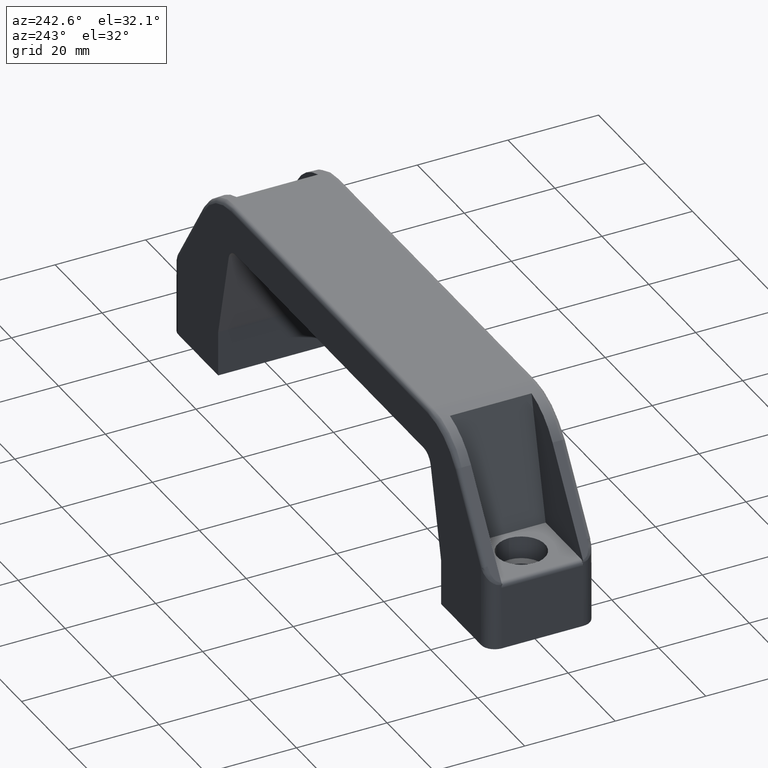
[diagram: clean part render]
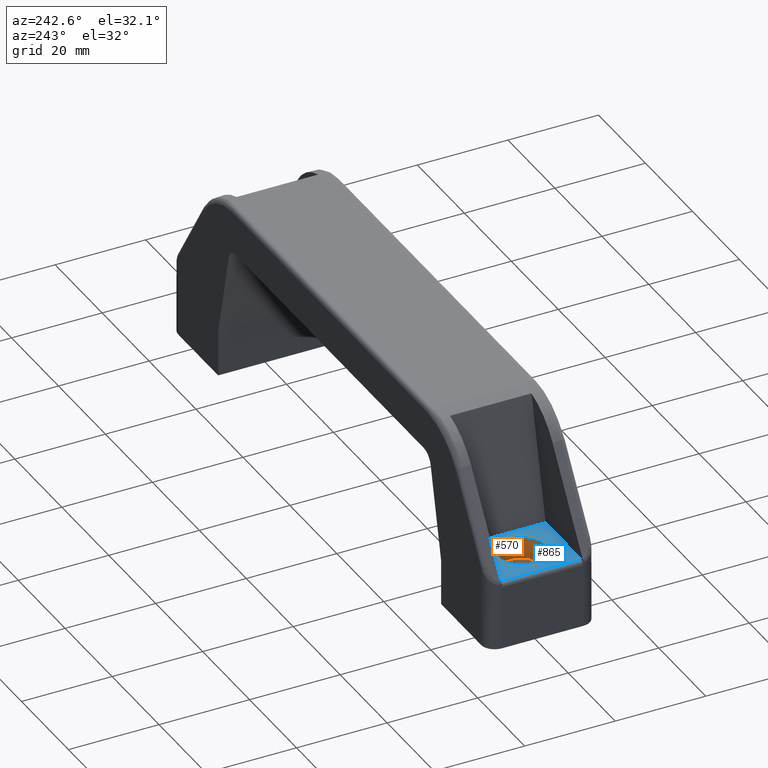
[diagram: same view with the hole feature highlighted: cylindrical wall and planar end face, labeled with their STEP entity ids]
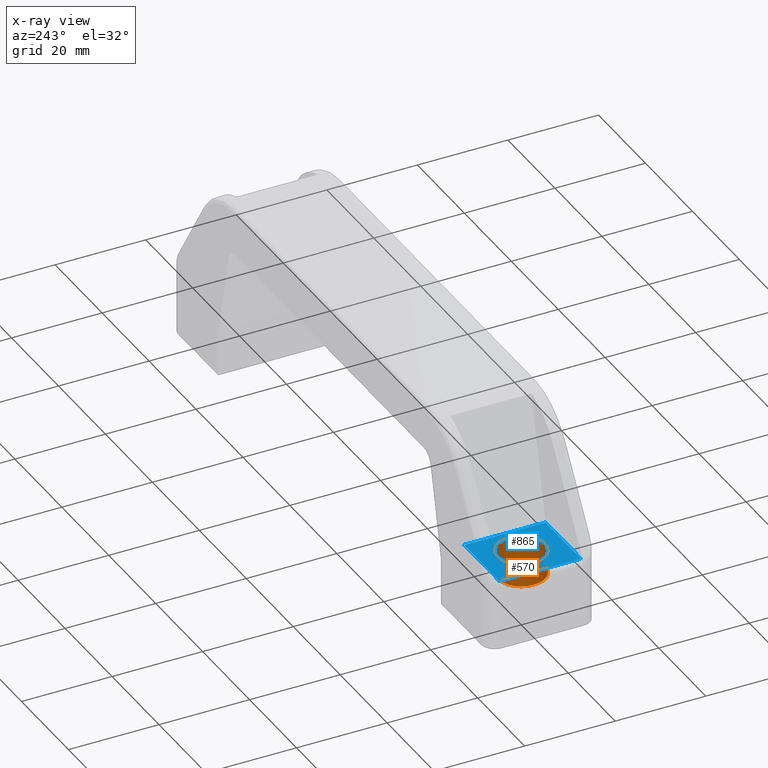
[diagram: x-ray of the same camera — body ghosted, the hole faces saturated]
A machine part, auxiliary view. The highlighted faces form one hole feature of diameter 10.5 mm: the cylindrical wall (entity #570, orange) and its adjacent planar end face (entity #865, blue) — they share a circular edge in the B-rep.
The next image is the same camera in x-ray (body ghosted, the hole faces saturated) — the bore reads through the body.
Wall:
#520=CARTESIAN_POINT('',(0.0,1.806664E-015,14.999999999937595));
#521=DIRECTION('',(1.076344E-016,6.123234E-017,1.0));
#522=DIRECTION('',(1.0,-6.052323E-018,-1.076344E-016));
#523=AXIS2_PLACEMENT_3D('',#520,#521,#522);
#524=CYLINDRICAL_SURFACE('',#523,5.250000000000000);
#525=CARTESIAN_POINT('',(-5.250000000000000,1.532277E-015,9.999999999937595));
#526=VERTEX_POINT('',#525);
#527=CARTESIAN_POINT('',(5.250000000000000,1.468727E-015,9.999999999937595));
#528=VERTEX_POINT('',#527);
#529=CARTESIAN_POINT('',(0.0,1.500502E-015,9.999999999937595));
#530=DIRECTION('',(1.076344E-016,6.123234E-017,1.0));
#531=DIRECTION('',(1.0,-6.052323E-018,-1.076344E-016));
#532=AXIS2_PLACEMENT_3D('',#529,#530,#531);
#533=CIRCLE('',#532,5.250000000000000);
#534=EDGE_CURVE('',#526,#528,#533,.T.);
#535=ORIENTED_EDGE('',*,*,#534,.F.);
#536=CARTESIAN_POINT('',(0.0,1.500502E-015,9.999999999937595));
#537=DIRECTION('',(1.076344E-016,6.123234E-017,1.0));
#538=DIRECTION('',(1.0,-6.052323E-018,-1.076344E-016));
#539=AXIS2_PLACEMENT_3D('',#536,#537,#538);
#540=CIRCLE('',#539,5.250000000000000);
#541=EDGE_CURVE('',#528,#526,#540,.T.);
#542=ORIENTED_EDGE('',*,*,#541,.F.);
#543=CARTESIAN_POINT('',(5.250000000000000,1.774889E-015,14.999999999937595));
#544=VERTEX_POINT('',#543);
#545=CARTESIAN_POINT('',(5.250000000000000,1.774889E-015,14.999999999937595));
#546=DIRECTION('',(0.0,0.0,-1.0));
#547=VECTOR('',#546,5.0);
#548=LINE('',#545,#547);
#549=EDGE_CURVE('',#544,#528,#548,.T.);
#550=ORIENTED_EDGE('',*,*,#549,.F.);
#551=CARTESIAN_POINT('',(-5.250000000000000,1.838438E-015,14.999999999937595));
#552=VERTEX_POINT('',#551);
#553=CARTESIAN_POINT('',(0.0,1.806664E-015,14.999999999937595));
#554=DIRECTION('',(1.076344E-016,6.123234E-017,1.0));
#555=DIRECTION('',(1.0,-6.052323E-018,-1.076344E-016));
#556=AXIS2_PLACEMENT_3D('',#553,#554,#555);
#557=CIRCLE('',#556,5.250000000000000);
#558=EDGE_CURVE('',#544,#552,#557,.T.);
#559=ORIENTED_EDGE('',*,*,#558,.T.);
#560=CARTESIAN_POINT('',(0.0,1.806664E-015,14.999999999937595));
#561=DIRECTION('',(1.076344E-016,6.123234E-017,1.0));
#562=DIRECTION('',(1.0,-6.052323E-018,-1.076344E-016));
#563=AXIS2_PLACEMENT_3D('',#560,#561,#562);
#564=CIRCLE('',#563,5.250000000000000);
#565=EDGE_CURVE('',#552,#544,#564,.T.);
#566=ORIENTED_EDGE('',*,*,#565,.T.);
#567=ORIENTED_EDGE('',*,*,#549,.T.);
#568=EDGE_LOOP('',(#535,#542,#550,#559,#566,#567));
#569=FACE_OUTER_BOUND('',#568,.T.);
#570=ADVANCED_FACE('',(#569),#524,.F.);
End face:
#237=CARTESIAN_POINT('',(6.999999999969987,-8.999999999963618,14.999999999937595));
#238=VERTEX_POINT('',#237);
#255=CARTESIAN_POINT('',(6.999999999969987,9.000000000036382,14.999999999937595));
#256=VERTEX_POINT('',#255);
#263=CARTESIAN_POINT('',(6.999999999969987,-8.999999999963618,14.999999999937595));
#264=DIRECTION('',(0.0,1.0,0.0));
#265=VECTOR('',#264,18.0);
#266=LINE('',#263,#265);
#267=EDGE_CURVE('',#238,#256,#266,.T.);
#543=CARTESIAN_POINT('',(5.250000000000000,1.774889E-015,14.999999999937595));
#544=VERTEX_POINT('',#543);
#551=CARTESIAN_POINT('',(-5.250000000000000,1.838438E-015,14.999999999937595));
#552=VERTEX_POINT('',#551);
#553=CARTESIAN_POINT('',(0.0,1.806664E-015,14.999999999937595));
#554=DIRECTION('',(1.076344E-016,6.123234E-017,1.0));
#555=DIRECTION('',(1.0,-6.052323E-018,-1.076344E-016));
#556=AXIS2_PLACEMENT_3D('',#553,#554,#555);
#557=CIRCLE('',#556,5.250000000000000);
#558=EDGE_CURVE('',#544,#552,#557,.T.);
#560=CARTESIAN_POINT('',(0.0,1.806664E-015,14.999999999937595));
#561=DIRECTION('',(1.076344E-016,6.123234E-017,1.0));
#562=DIRECTION('',(1.0,-6.052323E-018,-1.076344E-016));
#563=AXIS2_PLACEMENT_3D('',#560,#561,#562);
#564=CIRCLE('',#563,5.250000000000000);
#565=EDGE_CURVE('',#552,#544,#564,.T.);
#831=CARTESIAN_POINT('',(-26.007221861382050,-8.999999999963618,14.999999999937598));
#832=DIRECTION('',(0.0,0.0,1.0));
#833=DIRECTION('',(1.0,0.0,0.0));
#834=AXIS2_PLACEMENT_3D('',#831,#832,#833);
#835=PLANE('',#834);
#836=ORIENTED_EDGE('',*,*,#267,.T.);
#837=CARTESIAN_POINT('',(-7.999999999964075,9.000000000036382,14.999999999937595));
#838=VERTEX_POINT('',#837);
#839=CARTESIAN_POINT('',(-7.999999999964075,9.000000000036382,14.999999999937597));
#840=DIRECTION('',(1.0,0.0,0.0));
#841=VECTOR('',#840,14.999999999934062);
#842=LINE('',#839,#841);
#843=EDGE_CURVE('',#838,#256,#842,.T.);
#844=ORIENTED_EDGE('',*,*,#843,.F.);
#845=CARTESIAN_POINT('',(-7.999999999964075,-8.999999999963618,14.999999999937595));
#846=VERTEX_POINT('',#845);
#847=CARTESIAN_POINT('',(-7.999999999964075,9.000000000036382,14.999999999937595));
#848=DIRECTION('',(0.0,-1.0,0.0));
#849=VECTOR('',#848,18.0);
#850=LINE('',#847,#849);
#851=EDGE_CURVE('',#838,#846,#850,.T.);
#852=ORIENTED_EDGE('',*,*,#851,.T.);
#853=CARTESIAN_POINT('',(-7.999999999964075,-8.999999999963618,14.999999999937597));
#854=DIRECTION('',(1.0,0.0,0.0));
#855=VECTOR('',#854,14.999999999934062);
#856=LINE('',#853,#855);
#857=EDGE_CURVE('',#846,#238,#856,.T.);
#858=ORIENTED_EDGE('',*,*,#857,.T.);
#859=EDGE_LOOP('',(#836,#844,#852,#858));
#860=FACE_OUTER_BOUND('',#859,.T.);
#861=ORIENTED_EDGE('',*,*,#565,.F.);
#862=ORIENTED_EDGE('',*,*,#558,.F.);
#863=EDGE_LOOP('',(#861,#862));
#864=FACE_BOUND('',#863,.T.);
#865=ADVANCED_FACE('',(#860,#864),#835,.T.);